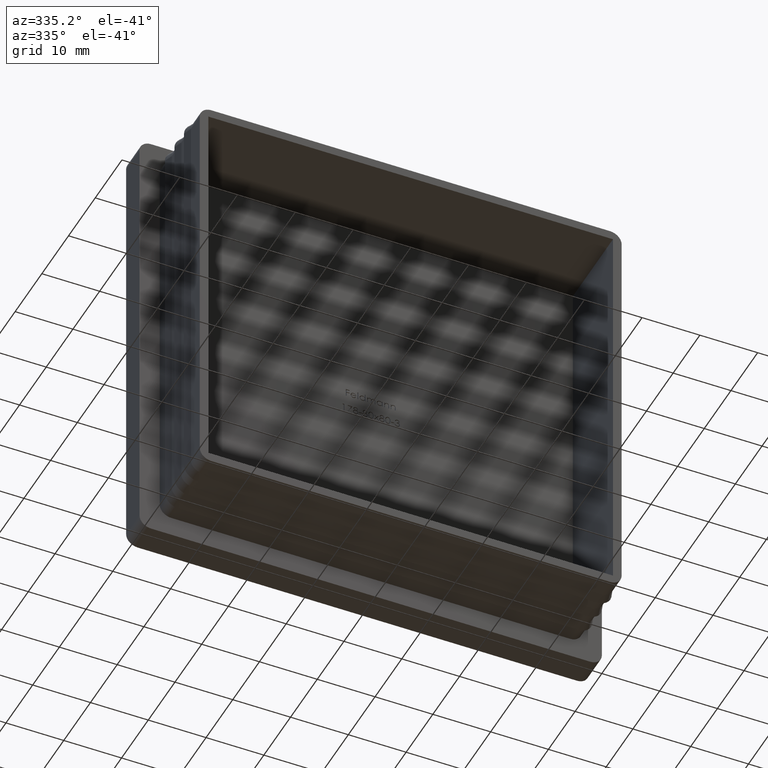
[diagram: clean part render]
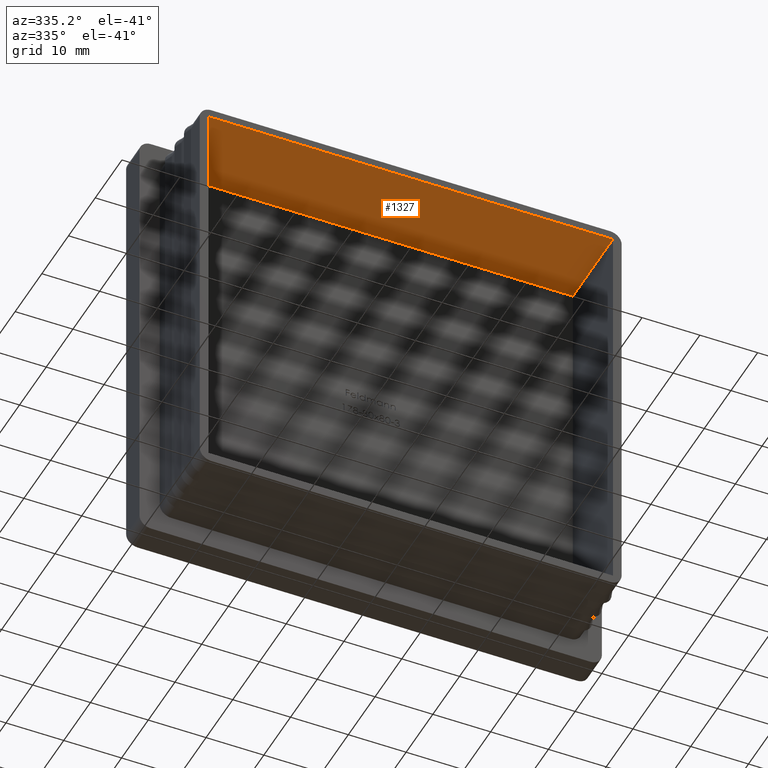
[diagram: same view with one face highlighted and labeled with its STEP entity id]
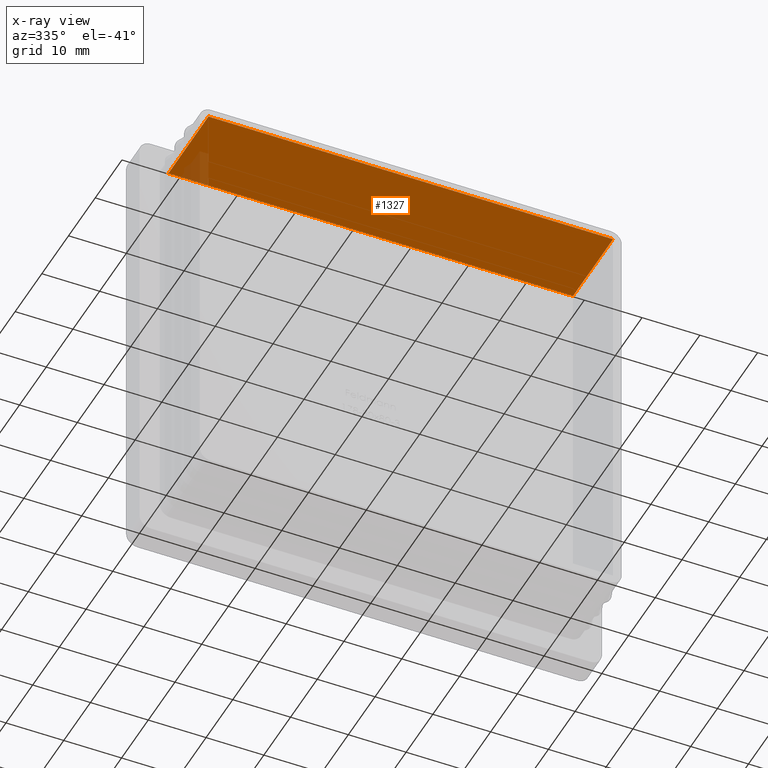
[diagram: x-ray of the same camera — body ghosted, the highlighted face saturated]
A machine part, auxiliary view. The second image highlights one B-rep face of the part: STEP entity #1327.
The next image is the same camera in x-ray: the body ghosted, the highlighted face saturated — about 2% of this face is hidden behind the body in this view.
In plain terms, the highlighted planar face has unit normal (0, 0, -1).
Its self-contained STEP definition (entity closure, byte-faithful):
#163 = DIRECTION ( 'NONE',  ( 1.000000000000000000, 0.0000000000000000000, 1.901066822988281900E-016 ) ) ;
#191 = DIRECTION ( 'NONE',  ( -1.000000000000000000, 0.0000000000000000000, -1.901066822988281900E-016 ) ) ;
#1327 = ADVANCED_FACE ( 'NONE', ( #11800 ), #6342, .T. ) ;
#1846 = CARTESIAN_POINT ( 'NONE',  ( -35.00000000000000000, -15.00000000000000000, 34.99999999999999300 ) ) ;
#1923 = AXIS2_PLACEMENT_3D ( 'NONE', #6497, #5985, #5962 ) ;
#2071 = EDGE_LOOP ( 'NONE', ( #7484, #12038, #10454, #2247 ) ) ;
#2247 = ORIENTED_EDGE ( 'NONE', *, *, #8491, .T. ) ;
#4647 = CARTESIAN_POINT ( 'NONE',  ( -35.00000000000000000, -15.00000000000000000, 34.99999999999999300 ) ) ;
#5014 = EDGE_CURVE ( 'NONE', #9268, #9782, #9903, .T. ) ;
#5642 = CARTESIAN_POINT ( 'NONE',  ( 34.99999999999999300, -15.00000000000000000, 35.00000000000000000 ) ) ;
#5812 = LINE ( 'NONE', #7956, #12421 ) ;
#5953 = VERTEX_POINT ( 'NONE', #14192 ) ;
#5962 = DIRECTION ( 'NONE',  ( -1.000000000000000000, 0.0000000000000000000, -1.901066822988281900E-016 ) ) ;
#5985 = DIRECTION ( 'NONE',  ( 1.901066822988281900E-016, 0.0000000000000000000, -1.000000000000000000 ) ) ;
#6311 = VECTOR ( 'NONE', #191, 1000.000000000000000 ) ;
#6342 = PLANE ( 'NONE',  #1923 ) ;
#6389 = VECTOR ( 'NONE', #8297, 1000.000000000000000 ) ;
#6497 = CARTESIAN_POINT ( 'NONE',  ( -36.50000000000000700, -15.00000000000000000, 34.99999999999999300 ) ) ;
#7484 = ORIENTED_EDGE ( 'NONE', *, *, #9384, .T. ) ;
#7667 = CARTESIAN_POINT ( 'NONE',  ( 34.99999999999999300, -15.00000000000000000, 35.00000000000000000 ) ) ;
#7956 = CARTESIAN_POINT ( 'NONE',  ( -6.653733880458986300E-015, 0.0000000000000000000, 34.99999999999999300 ) ) ;
#8043 = CARTESIAN_POINT ( 'NONE',  ( -36.50000000000000700, -15.00000000000000000, 34.99999999999999300 ) ) ;
#8297 = DIRECTION ( 'NONE',  ( 0.0000000000000000000, 1.000000000000000000, 0.0000000000000000000 ) ) ;
#8491 = EDGE_CURVE ( 'NONE', #14944, #5953, #15080, .T. ) ;
#9268 = VERTEX_POINT ( 'NONE', #7667 ) ;
#9384 = EDGE_CURVE ( 'NONE', #5953, #9782, #5812, .T. ) ;
#9782 = VERTEX_POINT ( 'NONE', #16221 ) ;
#9903 = LINE ( 'NONE', #5642, #6389 ) ;
#10454 = ORIENTED_EDGE ( 'NONE', *, *, #16312, .T. ) ;
#11642 = VECTOR ( 'NONE', #12669, 1000.000000000000000 ) ;
#11800 = FACE_OUTER_BOUND ( 'NONE', #2071, .T. ) ;
#12038 = ORIENTED_EDGE ( 'NONE', *, *, #5014, .F. ) ;
#12421 = VECTOR ( 'NONE', #163, 1000.000000000000000 ) ;
#12669 = DIRECTION ( 'NONE',  ( -0.0000000000000000000, 1.000000000000000000, 0.0000000000000000000 ) ) ;
#14192 = CARTESIAN_POINT ( 'NONE',  ( -35.00000000000000000, 0.0000000000000000000, 34.99999999999999300 ) ) ;
#14944 = VERTEX_POINT ( 'NONE', #1846 ) ;
#15080 = LINE ( 'NONE', #4647, #11642 ) ;
#15949 = LINE ( 'NONE', #8043, #6311 ) ;
#16221 = CARTESIAN_POINT ( 'NONE',  ( 34.99999999999999300, 0.0000000000000000000, 35.00000000000000000 ) ) ;
#16312 = EDGE_CURVE ( 'NONE', #9268, #14944, #15949, .T. ) ;